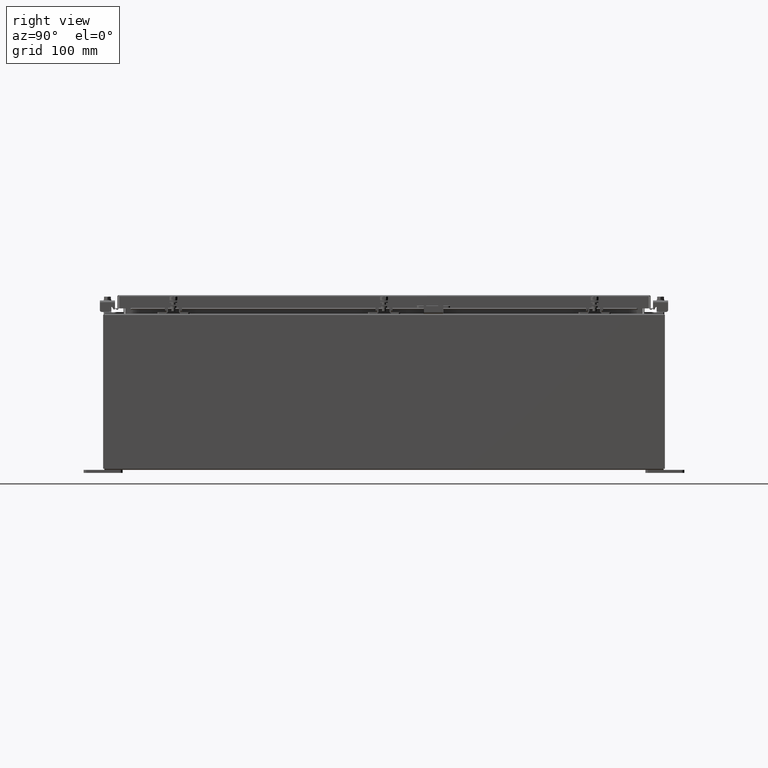
[diagram: clean part render]
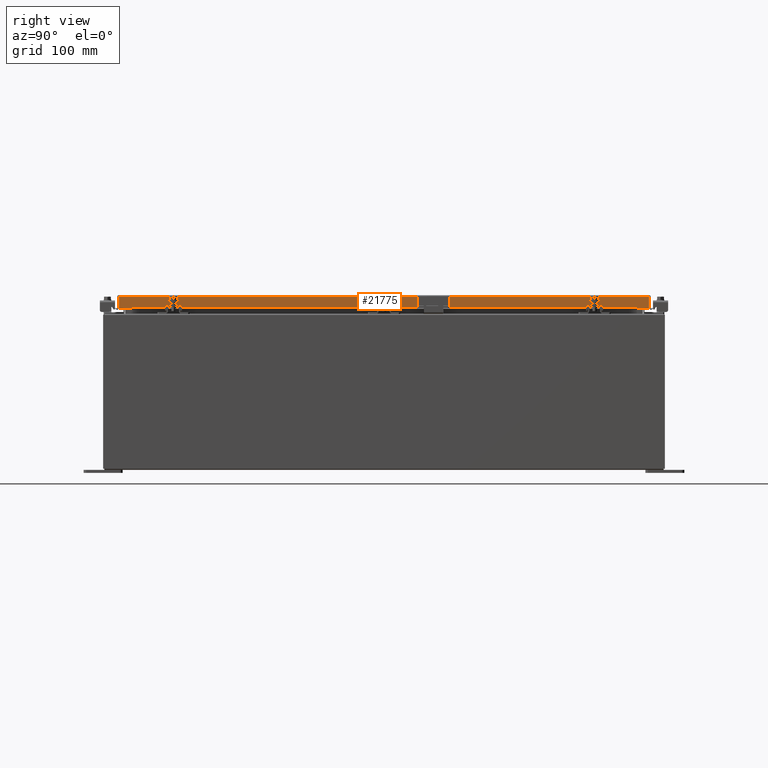
[diagram: same view with one face highlighted and labeled with its STEP entity id]
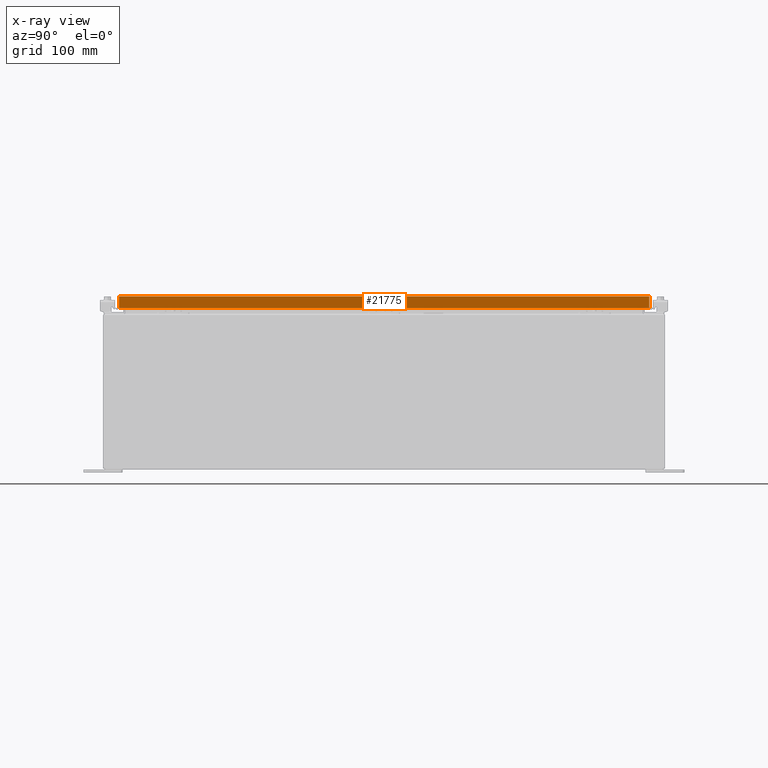
[diagram: x-ray of the same camera — body ghosted, the highlighted face saturated]
A machine part, right view. The second image highlights one B-rep face of the part: STEP entity #21775.
The next image is the same camera in x-ray: the body ghosted, the highlighted face saturated — about 0% of this face is hidden behind the body in this view.
In plain terms, the highlighted planar face has unit normal (1, 0, 0).
Its self-contained STEP definition (entity closure, byte-faithful):
#291 = CARTESIAN_POINT ( 'NONE',  ( 11.07799999999999600, 17.00515786437627600, -0.08770000000000007000 ) ) ;
#1963 = EDGE_LOOP ( 'NONE', ( #34658, #22613, #22083, #39911, #35990, #12701 ) ) ;
#2181 = CARTESIAN_POINT ( 'NONE',  ( 11.07799999999998900, 16.25515786437628300, -0.8500000000000016400 ) ) ;
#2797 = CARTESIAN_POINT ( 'NONE',  ( 11.07799999999999800, -17.00515786437626200, -0.8499999999999996400 ) ) ;
#2919 = PLANE ( 'NONE',  #27247 ) ;
#4161 = EDGE_CURVE ( 'NONE', #26664, #17866, #19685, .T. ) ;
#4628 = CARTESIAN_POINT ( 'NONE',  ( 11.07799999999999600, 17.00515786437627600, 1.502347594351464400E-013 ) ) ;
#5736 = VERTEX_POINT ( 'NONE', #8810 ) ;
#6221 = DIRECTION ( 'NONE',  ( 2.818880942772360100E-015, 0.0000000000000000000, -1.000000000000000000 ) ) ;
#6409 = EDGE_CURVE ( 'NONE', #5736, #26664, #8337, .T. ) ;
#6719 = VERTEX_POINT ( 'NONE', #33037 ) ;
#8337 = LINE ( 'NONE', #31358, #41880 ) ;
#8810 = CARTESIAN_POINT ( 'NONE',  ( 11.07799999999998900, -16.25515786437626200, -0.8500000000000016400 ) ) ;
#9688 = LINE ( 'NONE', #22826, #17346 ) ;
#12691 = VERTEX_POINT ( 'NONE', #27601 ) ;
#12701 = ORIENTED_EDGE ( 'NONE', *, *, #19644, .T. ) ;
#13259 = DIRECTION ( 'NONE',  ( 0.0000000000000000000, -1.000000000000000000, 0.0000000000000000000 ) ) ;
#14116 = VECTOR ( 'NONE', #41267, 39.37007874015748100 ) ;
#15998 = CARTESIAN_POINT ( 'NONE',  ( 11.07799999999999600, -17.00515786437626500, -0.08770000000000007000 ) ) ;
#17346 = VECTOR ( 'NONE', #32565, 39.37007874015748100 ) ;
#17866 = VERTEX_POINT ( 'NONE', #15998 ) ;
#19644 = EDGE_CURVE ( 'NONE', #31403, #17866, #9688, .T. ) ;
#19685 = LINE ( 'NONE', #41402, #14116 ) ;
#20167 = EDGE_CURVE ( 'NONE', #12691, #31403, #34547, .T. ) ;
#21683 = DIRECTION ( 'NONE',  ( 0.0000000000000000000, -1.000000000000000000, 0.0000000000000000000 ) ) ;
#21775 = ADVANCED_FACE ( 'NONE', ( #37213 ), #2919, .T. ) ;
#22083 = ORIENTED_EDGE ( 'NONE', *, *, #23926, .F. ) ;
#22613 = ORIENTED_EDGE ( 'NONE', *, *, #6409, .F. ) ;
#22826 = CARTESIAN_POINT ( 'NONE',  ( 11.07799999999999600, 0.0000000000000000000, -0.08770000000000007000 ) ) ;
#23926 = EDGE_CURVE ( 'NONE', #6719, #5736, #35474, .T. ) ;
#25704 = DIRECTION ( 'NONE',  ( 1.000000000000000000, 0.0000000000000000000, 2.818880942772360100E-015 ) ) ;
#26083 = CARTESIAN_POINT ( 'NONE',  ( 11.07799999999999800, -17.09399999999999800, -0.8499999999999996400 ) ) ;
#26664 = VERTEX_POINT ( 'NONE', #2797 ) ;
#27247 = AXIS2_PLACEMENT_3D ( 'NONE', #35298, #25704, #6221 ) ;
#27601 = CARTESIAN_POINT ( 'NONE',  ( 11.07799999999999800, 17.00515786437628000, -0.8499999999999996400 ) ) ;
#28855 = EDGE_CURVE ( 'NONE', #12691, #6719, #40009, .T. ) ;
#30611 = DIRECTION ( 'NONE',  ( -2.818880942772360500E-015, -6.982962677686269100E-015, 1.000000000000000000 ) ) ;
#31339 = VECTOR ( 'NONE', #13259, 39.37007874015748100 ) ;
#31358 = CARTESIAN_POINT ( 'NONE',  ( 11.07799999999999800, -17.09399999999999800, -0.8499999999999996400 ) ) ;
#31403 = VERTEX_POINT ( 'NONE', #291 ) ;
#32565 = DIRECTION ( 'NONE',  ( 0.0000000000000000000, -1.000000000000000000, 0.0000000000000000000 ) ) ;
#33037 = CARTESIAN_POINT ( 'NONE',  ( 11.07799999999998900, 16.25515786437628000, -0.8500000000000016400 ) ) ;
#33524 = VECTOR ( 'NONE', #30611, 39.37007874015748100 ) ;
#34465 = VECTOR ( 'NONE', #21683, 39.37007874015748100 ) ;
#34547 = LINE ( 'NONE', #4628, #33524 ) ;
#34658 = ORIENTED_EDGE ( 'NONE', *, *, #4161, .F. ) ;
#35298 = CARTESIAN_POINT ( 'NONE',  ( 11.07799999999999600, 0.0000000000000000000, 3.148837674004377800E-014 ) ) ;
#35474 = LINE ( 'NONE', #2181, #34465 ) ;
#35990 = ORIENTED_EDGE ( 'NONE', *, *, #20167, .T. ) ;
#37213 = FACE_OUTER_BOUND ( 'NONE', #1963, .T. ) ;
#37912 = DIRECTION ( 'NONE',  ( 0.0000000000000000000, -1.000000000000000000, 0.0000000000000000000 ) ) ;
#39911 = ORIENTED_EDGE ( 'NONE', *, *, #28855, .F. ) ;
#40009 = LINE ( 'NONE', #26083, #31339 ) ;
#41267 = DIRECTION ( 'NONE',  ( -2.818880942772360500E-015, -6.982962677686269100E-015, 1.000000000000000000 ) ) ;
#41402 = CARTESIAN_POINT ( 'NONE',  ( 11.07799999999999600, -17.00515786437626500, -0.07469999999999978000 ) ) ;
#41880 = VECTOR ( 'NONE', #37912, 39.37007874015748100 ) ;